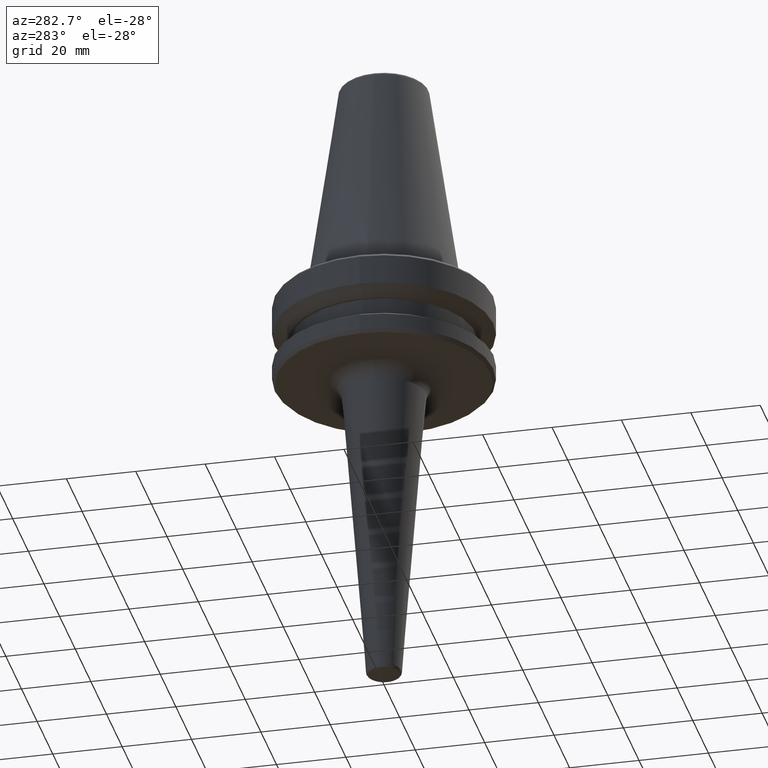
[diagram: clean part render]
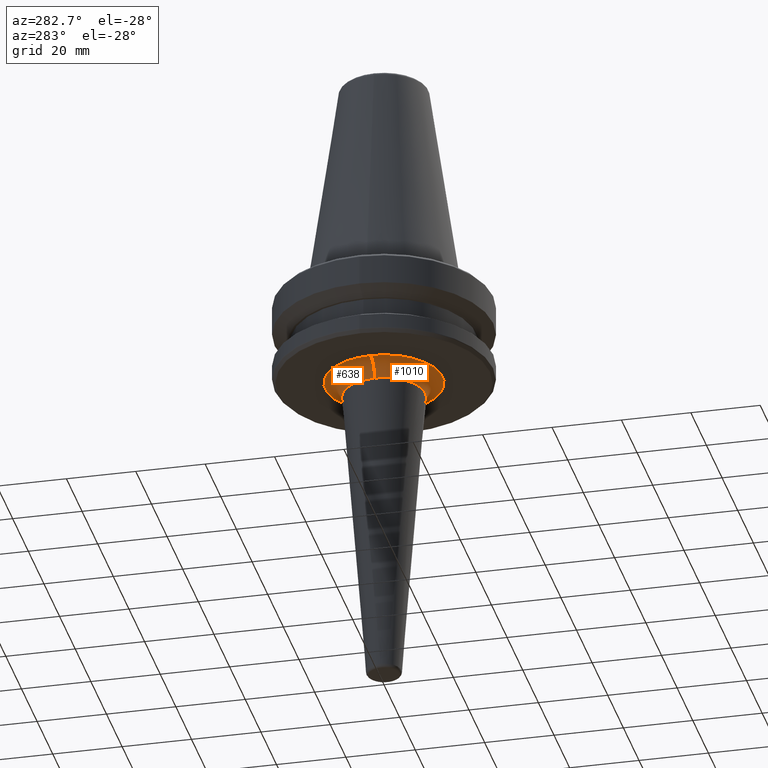
[diagram: same view with one multi-face feature highlighted, each face labeled with its STEP entity id]
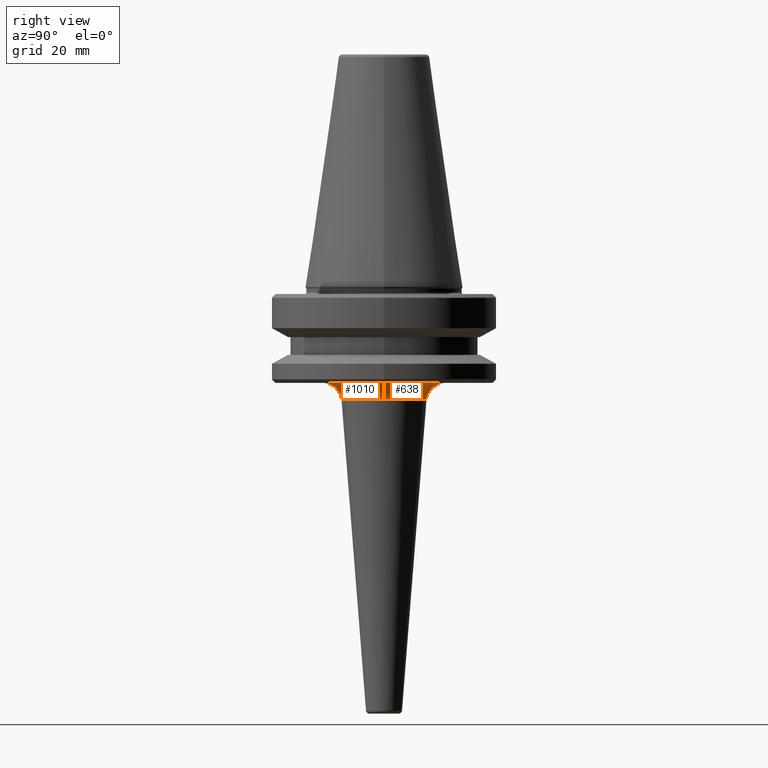
[diagram: same view with one multi-face feature highlighted, each face labeled with its STEP entity id]
A machine part, auxiliary view. The highlighted faces form ONE feature: a constant-radius fillet chain: 2 tangent blend faces with common blend radius 5 mm. The faces share edges in the B-rep.
A second angle (right view) of the same feature is appended — it is thin or edge-on in the first view.
Their STEP definitions:
[1] entity #1010 (Torus):
#41 = ORIENTED_EDGE ( 'NONE', *, *, #905, .F. ) ;
#44 = TOROIDAL_SURFACE ( 'NONE', #55, 16.94121119297990700, 5.000000000000000000 ) ;
#52 = DIRECTION ( 'NONE',  ( 0.0000000000000000000, 0.0000000000000000000, -1.000000000000000000 ) ) ;
#55 = AXIS2_PLACEMENT_3D ( 'NONE', #985, #697, #607 ) ;
#73 = AXIS2_PLACEMENT_3D ( 'NONE', #1192, #616, #52 ) ;
#105 = AXIS2_PLACEMENT_3D ( 'NONE', #347, #996, #445 ) ;
#120 = CIRCLE ( 'NONE', #495, 5.000000000000000900 ) ;
#152 = EDGE_LOOP ( 'NONE', ( #233, #1016, #491, #1188, #41 ) ) ;
#175 = DIRECTION ( 'NONE',  ( -1.000000000000000000, 0.0000000000000000000, 0.0000000000000000000 ) ) ;
#185 = DIRECTION ( 'NONE',  ( -0.0000000000000000000, -0.0000000000000000000, 1.000000000000000000 ) ) ;
#193 = CARTESIAN_POINT ( 'NONE',  ( -3.508180771767940200E-015, 3.653032696910941000E-015, -27.00000000000000400 ) ) ;
#233 = ORIENTED_EDGE ( 'NONE', *, *, #1053, .F. ) ;
#239 = VERTEX_POINT ( 'NONE', #813 ) ;
#258 = CIRCLE ( 'NONE', #1054, 16.94121119297990700 ) ;
#347 = CARTESIAN_POINT ( 'NONE',  ( -3.508180771767940200E-015, 3.653032696910941000E-015, -31.60770452136080900 ) ) ;
#389 = CARTESIAN_POINT ( 'NONE',  ( 11.95662452431426100, 5.422514797584459500E-015, -31.60770452136080900 ) ) ;
#440 = DIRECTION ( 'NONE',  ( -0.0000000000000000000, 3.950473545636628200E-017, -1.000000000000000000 ) ) ;
#443 = CARTESIAN_POINT ( 'NONE',  ( -3.508180771767940200E-015, 3.653032696910941000E-015, -31.60770452136080900 ) ) ;
#445 = DIRECTION ( 'NONE',  ( 0.0000000000000000000, -1.000000000000000000, 0.0000000000000000000 ) ) ;
#447 = DIRECTION ( 'NONE',  ( 0.0000000000000000000, -1.000000000000000000, 0.0000000000000000000 ) ) ;
#460 = VERTEX_POINT ( 'NONE', #521 ) ;
#468 = DIRECTION ( 'NONE',  ( -1.000000000000000000, -1.224646799147353500E-016, 0.0000000000000000000 ) ) ;
#491 = ORIENTED_EDGE ( 'NONE', *, *, #832, .F. ) ;
#495 = AXIS2_PLACEMENT_3D ( 'NONE', #570, #558, #468 ) ;
#521 = CARTESIAN_POINT ( 'NONE',  ( 0.0000000000000000000, -11.95662452431426500, -31.60770452136080900 ) ) ;
#553 = VERTEX_POINT ( 'NONE', #1230 ) ;
#558 = DIRECTION ( 'NONE',  ( -1.224646799147353200E-016, 1.000000000000000000, 0.0000000000000000000 ) ) ;
#570 = CARTESIAN_POINT ( 'NONE',  ( 16.94121119297990300, 5.727732703027156700E-015, -32.00000000000000000 ) ) ;
#607 = DIRECTION ( 'NONE',  ( -1.000000000000000000, 0.0000000000000000000, 0.0000000000000000000 ) ) ;
#616 = DIRECTION ( 'NONE',  ( -0.0000000000000000000, -1.000000000000000000, -0.0000000000000000000 ) ) ;
#666 = VERTEX_POINT ( 'NONE', #947 ) ;
#697 = DIRECTION ( 'NONE',  ( 0.0000000000000000000, 0.0000000000000000000, -1.000000000000000000 ) ) ;
#739 = CIRCLE ( 'NONE', #73, 4.999999999999997300 ) ;
#789 = VERTEX_POINT ( 'NONE', #389 ) ;
#795 = FACE_OUTER_BOUND ( 'NONE', #152, .T. ) ;
#813 = CARTESIAN_POINT ( 'NONE',  ( -16.94121119297991000, 3.653032696910941000E-015, -27.00000000000000400 ) ) ;
#832 = EDGE_CURVE ( 'NONE', #239, #666, #258, .T. ) ;
#905 = EDGE_CURVE ( 'NONE', #460, #553, #977, .T. ) ;
#947 = CARTESIAN_POINT ( 'NONE',  ( 16.94121119297990300, 5.727732703027156700E-015, -27.00000000000000400 ) ) ;
#970 = EDGE_CURVE ( 'NONE', #789, #666, #120, .T. ) ;
#977 = CIRCLE ( 'NONE', #980, 11.95662452431426500 ) ;
#980 = AXIS2_PLACEMENT_3D ( 'NONE', #443, #440, #447 ) ;
#985 = CARTESIAN_POINT ( 'NONE',  ( -3.508180771767940200E-015, 3.653032696910941000E-015, -32.00000000000000000 ) ) ;
#996 = DIRECTION ( 'NONE',  ( -0.0000000000000000000, 3.950473545636628200E-017, -1.000000000000000000 ) ) ;
#1010 = ADVANCED_FACE ( 'NONE', ( #795 ), #44, .F. ) ;
#1016 = ORIENTED_EDGE ( 'NONE', *, *, #970, .T. ) ;
#1038 = EDGE_CURVE ( 'NONE', #553, #239, #739, .T. ) ;
#1053 = EDGE_CURVE ( 'NONE', #789, #460, #1221, .T. ) ;
#1054 = AXIS2_PLACEMENT_3D ( 'NONE', #193, #185, #175 ) ;
#1188 = ORIENTED_EDGE ( 'NONE', *, *, #1038, .F. ) ;
#1192 = CARTESIAN_POINT ( 'NONE',  ( -16.94121119297991000, 3.653032696910941000E-015, -32.00000000000000000 ) ) ;
#1221 = CIRCLE ( 'NONE', #105, 11.95662452431426500 ) ;
#1230 = CARTESIAN_POINT ( 'NONE',  ( -11.95662452431426800, 3.653032696910941000E-015, -31.60770452136080900 ) ) ;
[2] entity #638 (Torus):
#52 = DIRECTION ( 'NONE',  ( 0.0000000000000000000, 0.0000000000000000000, -1.000000000000000000 ) ) ;
#73 = AXIS2_PLACEMENT_3D ( 'NONE', #1192, #616, #52 ) ;
#74 = ORIENTED_EDGE ( 'NONE', *, *, #80, .F. ) ;
#77 = EDGE_CURVE ( 'NONE', #666, #239, #1146, .T. ) ;
#80 = EDGE_CURVE ( 'NONE', #553, #838, #394, .T. ) ;
#120 = CIRCLE ( 'NONE', #495, 5.000000000000000900 ) ;
#180 = AXIS2_PLACEMENT_3D ( 'NONE', #926, #959, #953 ) ;
#239 = VERTEX_POINT ( 'NONE', #813 ) ;
#270 = TOROIDAL_SURFACE ( 'NONE', #180, 16.94121119297990700, 5.000000000000000000 ) ;
#295 = CARTESIAN_POINT ( 'NONE',  ( 1.464264195230821200E-015, 11.95662452431426500, -31.60770452136080900 ) ) ;
#298 = DIRECTION ( 'NONE',  ( -1.000000000000000000, 0.0000000000000000000, 0.0000000000000000000 ) ) ;
#389 = CARTESIAN_POINT ( 'NONE',  ( 11.95662452431426100, 5.422514797584459500E-015, -31.60770452136080900 ) ) ;
#394 = CIRCLE ( 'NONE', #834, 11.95662452431426500 ) ;
#468 = DIRECTION ( 'NONE',  ( -1.000000000000000000, -1.224646799147353500E-016, 0.0000000000000000000 ) ) ;
#470 = DIRECTION ( 'NONE',  ( -0.0000000000000000000, 3.950473545636628200E-017, -1.000000000000000000 ) ) ;
#495 = AXIS2_PLACEMENT_3D ( 'NONE', #570, #558, #468 ) ;
#520 = ORIENTED_EDGE ( 'NONE', *, *, #1038, .T. ) ;
#553 = VERTEX_POINT ( 'NONE', #1230 ) ;
#558 = DIRECTION ( 'NONE',  ( -1.224646799147353200E-016, 1.000000000000000000, 0.0000000000000000000 ) ) ;
#570 = CARTESIAN_POINT ( 'NONE',  ( 16.94121119297990300, 5.727732703027156700E-015, -32.00000000000000000 ) ) ;
#616 = DIRECTION ( 'NONE',  ( -0.0000000000000000000, -1.000000000000000000, -0.0000000000000000000 ) ) ;
#638 = ADVANCED_FACE ( 'NONE', ( #983 ), #270, .F. ) ;
#640 = DIRECTION ( 'NONE',  ( 0.0000000000000000000, -1.000000000000000000, 0.0000000000000000000 ) ) ;
#649 = CARTESIAN_POINT ( 'NONE',  ( -3.508180771767940200E-015, 3.653032696910941000E-015, -31.60770452136080900 ) ) ;
#666 = VERTEX_POINT ( 'NONE', #947 ) ;
#739 = CIRCLE ( 'NONE', #73, 4.999999999999997300 ) ;
#789 = VERTEX_POINT ( 'NONE', #389 ) ;
#813 = CARTESIAN_POINT ( 'NONE',  ( -16.94121119297991000, 3.653032696910941000E-015, -27.00000000000000400 ) ) ;
#819 = ORIENTED_EDGE ( 'NONE', *, *, #1153, .F. ) ;
#821 = AXIS2_PLACEMENT_3D ( 'NONE', #1026, #470, #1132 ) ;
#834 = AXIS2_PLACEMENT_3D ( 'NONE', #649, #1068, #640 ) ;
#838 = VERTEX_POINT ( 'NONE', #295 ) ;
#863 = AXIS2_PLACEMENT_3D ( 'NONE', #1137, #1115, #298 ) ;
#901 = ORIENTED_EDGE ( 'NONE', *, *, #77, .F. ) ;
#926 = CARTESIAN_POINT ( 'NONE',  ( -3.508180771767940200E-015, 3.653032696910941000E-015, -32.00000000000000000 ) ) ;
#946 = EDGE_LOOP ( 'NONE', ( #991, #819, #74, #520, #901 ) ) ;
#947 = CARTESIAN_POINT ( 'NONE',  ( 16.94121119297990300, 5.727732703027156700E-015, -27.00000000000000400 ) ) ;
#953 = DIRECTION ( 'NONE',  ( -1.000000000000000000, 0.0000000000000000000, 0.0000000000000000000 ) ) ;
#959 = DIRECTION ( 'NONE',  ( 0.0000000000000000000, 0.0000000000000000000, -1.000000000000000000 ) ) ;
#968 = CIRCLE ( 'NONE', #821, 11.95662452431426500 ) ;
#970 = EDGE_CURVE ( 'NONE', #789, #666, #120, .T. ) ;
#983 = FACE_OUTER_BOUND ( 'NONE', #946, .T. ) ;
#991 = ORIENTED_EDGE ( 'NONE', *, *, #970, .F. ) ;
#1026 = CARTESIAN_POINT ( 'NONE',  ( -3.508180771767940200E-015, 3.653032696910941000E-015, -31.60770452136080900 ) ) ;
#1038 = EDGE_CURVE ( 'NONE', #553, #239, #739, .T. ) ;
#1068 = DIRECTION ( 'NONE',  ( -0.0000000000000000000, 3.950473545636628200E-017, -1.000000000000000000 ) ) ;
#1115 = DIRECTION ( 'NONE',  ( -0.0000000000000000000, -0.0000000000000000000, 1.000000000000000000 ) ) ;
#1132 = DIRECTION ( 'NONE',  ( 0.0000000000000000000, -1.000000000000000000, 0.0000000000000000000 ) ) ;
#1137 = CARTESIAN_POINT ( 'NONE',  ( -3.508180771767940200E-015, 3.653032696910941000E-015, -27.00000000000000400 ) ) ;
#1146 = CIRCLE ( 'NONE', #863, 16.94121119297990700 ) ;
#1153 = EDGE_CURVE ( 'NONE', #838, #789, #968, .T. ) ;
#1192 = CARTESIAN_POINT ( 'NONE',  ( -16.94121119297991000, 3.653032696910941000E-015, -32.00000000000000000 ) ) ;
#1230 = CARTESIAN_POINT ( 'NONE',  ( -11.95662452431426800, 3.653032696910941000E-015, -31.60770452136080900 ) ) ;